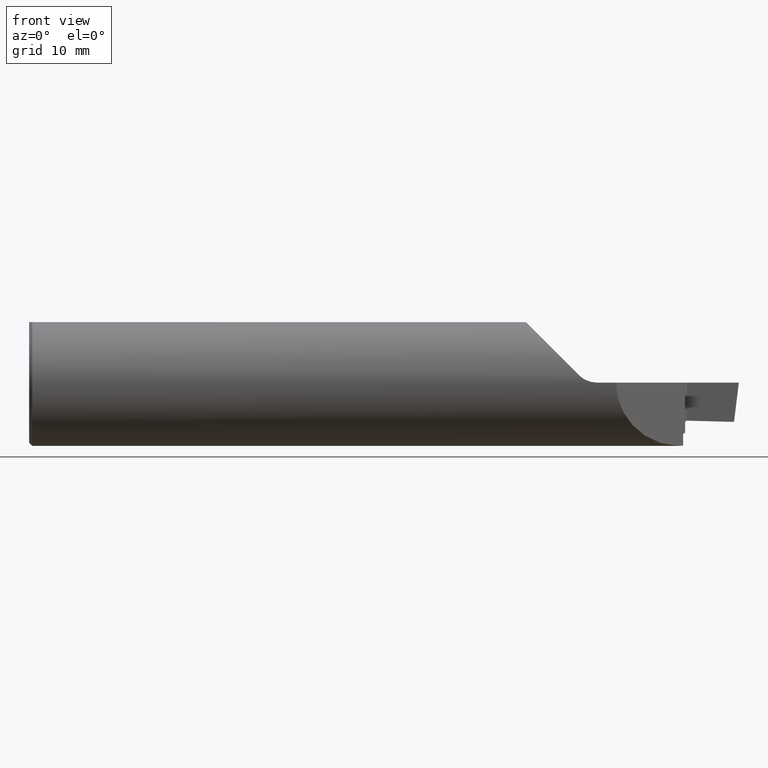
[diagram: clean part render]
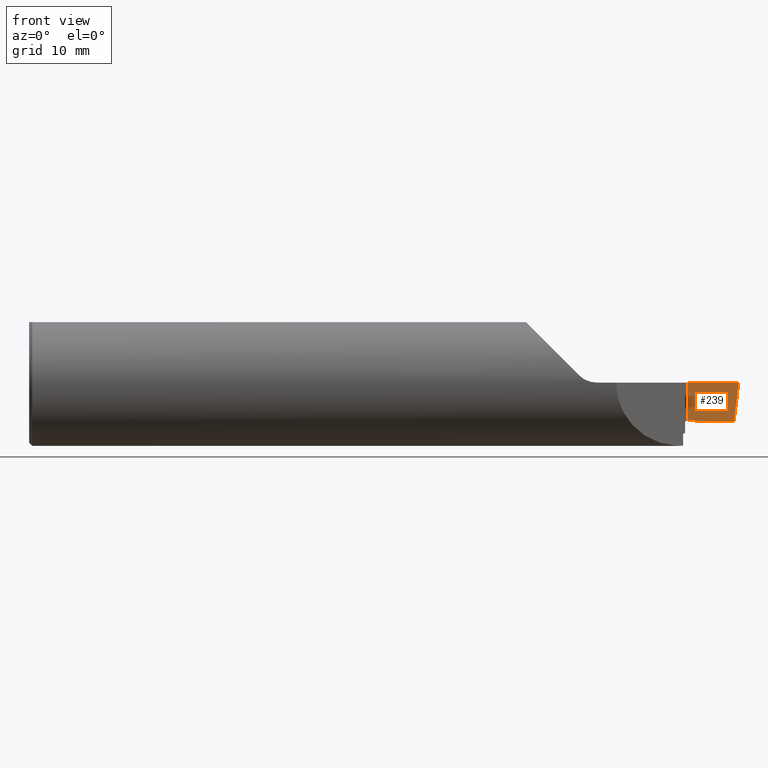
[diagram: same view with one face highlighted and labeled with its STEP entity id]
A machine part, front view. The second image highlights one B-rep face of the part: STEP entity #239.
In plain terms, the highlighted planar face has unit normal (0.0174, 0.9992, 0.0349).
Its self-contained STEP definition (entity closure, byte-faithful):
#33 = DIRECTION ( 'NONE',  ( 0.1217869383157133556, -0.03676811390802554175, 0.9918750160455352960 ) ) ;
#49 = VERTEX_POINT ( 'NONE', #737 ) ;
#91 = EDGE_CURVE ( 'NONE', #49, #501, #264, .T. ) ;
#108 = VERTEX_POINT ( 'NONE', #617 ) ;
#112 = EDGE_LOOP ( 'NONE', ( #887, #697, #490, #461 ) ) ;
#139 = DIRECTION ( 'NONE',  ( 0.01744177490282183482, 0.9992386149554827179, 0.03489949670250105246 ) ) ;
#171 = DIRECTION ( 'NONE',  ( -0.0006090802009083879243, -0.03489418134011375294, 0.9993908270190957621 ) ) ;
#233 = VECTOR ( 'NONE', #33, 39.37007874015748854 ) ;
#239 = ADVANCED_FACE ( 'NONE', ( #925 ), #353, .F. ) ;
#241 = CARTESIAN_POINT ( 'NONE',  ( 3.245289058716597452, 0.1923589194189311846, -0.1879307201879037159 ) ) ;
#264 = LINE ( 'NONE', #479, #233 ) ;
#275 = DIRECTION ( 'NONE',  ( 0.000000000000000000, -0.03490480639812536950, 0.9993906415863165194 ) ) ;
#321 = LINE ( 'NONE', #760, #886 ) ;
#353 = PLANE ( 'NONE',  #930 ) ;
#386 = VECTOR ( 'NONE', #171, 39.37007874015748143 ) ;
#392 = CARTESIAN_POINT ( 'NONE',  ( 3.321362296404955394, 0.1911012239811448743, -0.1899397589198227043 ) ) ;
#459 = CARTESIAN_POINT ( 'NONE',  ( 3.500000000000000444, 0.1813492383597804791, 0.000000000000000000 ) ) ;
#461 = ORIENTED_EDGE ( 'NONE', *, *, #511, .F. ) ;
#479 = CARTESIAN_POINT ( 'NONE',  ( 3.448613467450340142, 0.1968631014082662667, -0.4185097228168210282 ) ) ;
#490 = ORIENTED_EDGE ( 'NONE', *, *, #858, .F. ) ;
#501 = VERTEX_POINT ( 'NONE', #459 ) ;
#511 = EDGE_CURVE ( 'NONE', #108, #826, #884, .T. ) ;
#534 =( BOUNDED_CURVE ( )  B_SPLINE_CURVE ( 3, ( #241, #392, #666, #598 ),
 .UNSPECIFIED., .F., .T. ) 
 B_SPLINE_CURVE_WITH_KNOTS ( ( 4, 4 ),
 ( 0.9450776313435367282, 0.9783713790889095874 ),
 .UNSPECIFIED. ) 
 CURVE ( )  GEOMETRIC_REPRESENTATION_ITEM ( )  RATIONAL_B_SPLINE_CURVE ( ( 1.000000000000000000, 0.9999076293299196116, 0.9999076293299196116, 1.000000000000000000 ) ) 
 REPRESENTATION_ITEM ( '' )  );
#539 = DIRECTION ( 'NONE',  ( 0.9998476951563912696, -0.01745240643727517804, 0.000000000000000000 ) ) ;
#590 = CARTESIAN_POINT ( 'NONE',  ( 3.245174524064372790, 0.1857972335875986702, -1.814117808292674871E-17 ) ) ;
#598 = CARTESIAN_POINT ( 'NONE',  ( 3.476200992983747629, 0.1885342831024527932, -0.1938273577821575389 ) ) ;
#617 = CARTESIAN_POINT ( 'NONE',  ( 3.245289058716597452, 0.1923589194189311846, -0.1879307201879037159 ) ) ;
#666 = CARTESIAN_POINT ( 'NONE',  ( 3.398340051647506854, 0.1898262274367002456, -0.1919054863601347971 ) ) ;
#697 = ORIENTED_EDGE ( 'NONE', *, *, #91, .T. ) ;
#737 = CARTESIAN_POINT ( 'NONE',  ( 3.476200992983747629, 0.1885342831024527932, -0.1938273577821575389 ) ) ;
#760 = CARTESIAN_POINT ( 'NONE',  ( 2.760588342173541321, 0.1942557168558162461, 0.000000000000000000 ) ) ;
#826 = VERTEX_POINT ( 'NONE', #590 ) ;
#858 = EDGE_CURVE ( 'NONE', #826, #501, #321, .T. ) ;
#871 = EDGE_CURVE ( 'NONE', #108, #49, #534, .T. ) ;
#884 = LINE ( 'NONE', #892, #386 ) ;
#886 = VECTOR ( 'NONE', #539, 39.37007874015748854 ) ;
#887 = ORIENTED_EDGE ( 'NONE', *, *, #871, .T. ) ;
#892 = CARTESIAN_POINT ( 'NONE',  ( 3.245414319419061222, 0.1995351002569347998, -0.3934609555193290253 ) ) ;
#913 = CARTESIAN_POINT ( 'NONE',  ( 3.245414319419061222, 0.1995351002569347998, -0.3934609555193290253 ) ) ;
#925 = FACE_OUTER_BOUND ( 'NONE', #112, .T. ) ;
#930 = AXIS2_PLACEMENT_3D ( 'NONE', #913, #139, #275 ) ;